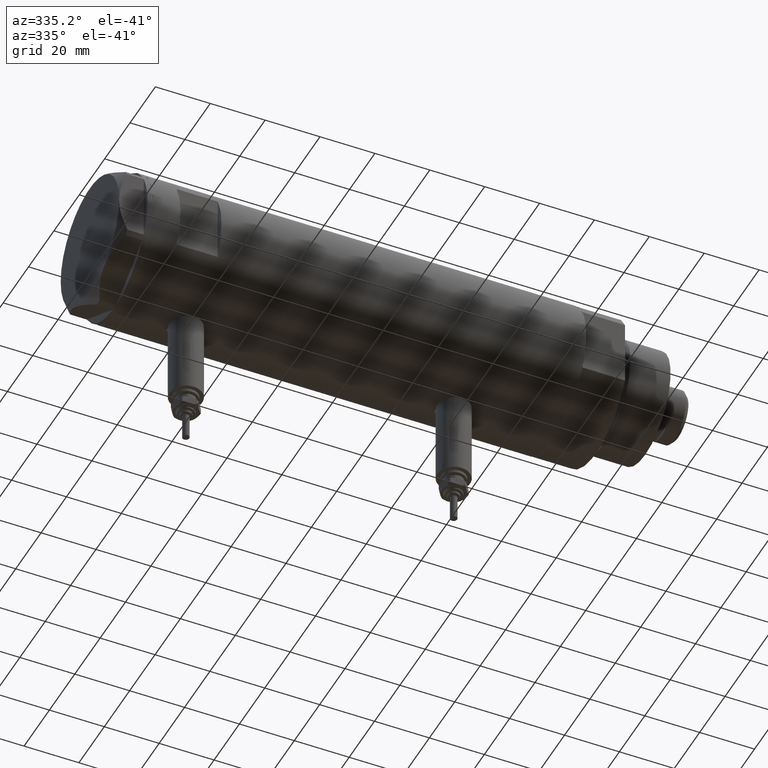
[diagram: clean part render]
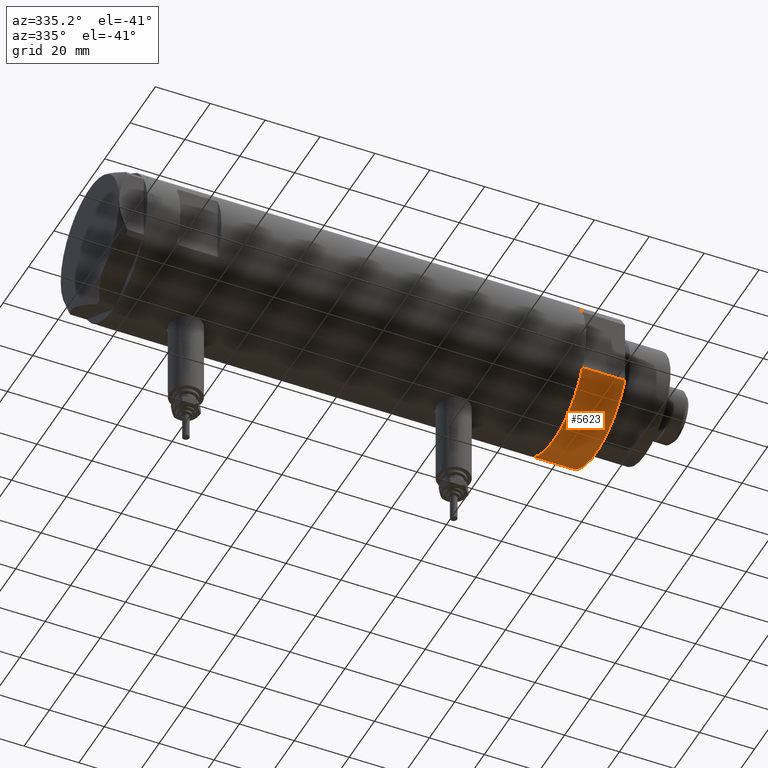
[diagram: same view with one face highlighted and labeled with its STEP entity id]
A machine part, auxiliary view. The second image highlights one B-rep face of the part: STEP entity #5623.
In plain terms, the highlighted cylindrical surface (partial cylindrical patch) has radius 26 mm, axis along (-1, -0, 0).
Its self-contained STEP definition (entity closure, byte-faithful):
#239 = VECTOR ( 'NONE', #577, 1000.000000000000000 ) ;
#300 = EDGE_CURVE ( 'NONE', #2695, #940, #2361, .T. ) ;
#489 = ORIENTED_EDGE ( 'NONE', *, *, #821, .F. ) ;
#577 = DIRECTION ( 'NONE',  ( -0.000000000000000000, -0.000000000000000000, 1.000000000000000000 ) ) ;
#691 = DIRECTION ( 'NONE',  ( 1.000000000000000000, 0.000000000000000000, 0.000000000000000000 ) ) ;
#821 = EDGE_CURVE ( 'NONE', #3895, #5755, #1532, .T. ) ;
#920 = ORIENTED_EDGE ( 'NONE', *, *, #6207, .T. ) ;
#940 = VERTEX_POINT ( 'NONE', #4628 ) ;
#971 = CARTESIAN_POINT ( 'NONE',  ( 12.12435565298215323, 23.00000000000000355, 0.000000000000000000 ) ) ;
#1024 = CARTESIAN_POINT ( 'NONE',  ( 12.12435565298215323, -22.99999999999999645, 0.000000000000000000 ) ) ;
#1099 = AXIS2_PLACEMENT_3D ( 'NONE', #4837, #5336, #5841 ) ;
#1210 = CARTESIAN_POINT ( 'NONE',  ( 12.12435565298214080, 23.00000000000000355, 0.000000000000000000 ) ) ;
#1301 = DIRECTION ( 'NONE',  ( 0.000000000000000000, 0.000000000000000000, 1.000000000000000000 ) ) ;
#1498 = AXIS2_PLACEMENT_3D ( 'NONE', #5079, #1301, #691 ) ;
#1532 = LINE ( 'NONE', #1024, #239 ) ;
#2361 = LINE ( 'NONE', #971, #3501 ) ;
#2432 = DIRECTION ( 'NONE',  ( -0.000000000000000000, -0.000000000000000000, -1.000000000000000000 ) ) ;
#2548 = EDGE_LOOP ( 'NONE', ( #5129, #489, #920, #4459 ) ) ;
#2695 = VERTEX_POINT ( 'NONE', #1210 ) ;
#2860 = DIRECTION ( 'NONE',  ( -0.000000000000000000, -0.000000000000000000, 1.000000000000000000 ) ) ;
#3329 = CYLINDRICAL_SURFACE ( 'NONE', #4069, 26.00000000000000355 ) ;
#3387 = DIRECTION ( 'NONE',  ( -1.000000000000000000, 0.000000000000000000, 0.000000000000000000 ) ) ;
#3501 = VECTOR ( 'NONE', #2860, 1000.000000000000000 ) ;
#3895 = VERTEX_POINT ( 'NONE', #4934 ) ;
#3974 = CIRCLE ( 'NONE', #1099, 26.00000000000000355 ) ;
#4069 = AXIS2_PLACEMENT_3D ( 'NONE', #4817, #2432, #3387 ) ;
#4284 = CIRCLE ( 'NONE', #1498, 26.00000000000000355 ) ;
#4455 = EDGE_CURVE ( 'NONE', #5755, #940, #4284, .T. ) ;
#4459 = ORIENTED_EDGE ( 'NONE', *, *, #300, .T. ) ;
#4628 = CARTESIAN_POINT ( 'NONE',  ( 12.12435565298214790, 23.00000000000000355, 15.50000000000000000 ) ) ;
#4817 = CARTESIAN_POINT ( 'NONE',  ( 0.000000000000000000, 0.000000000000000000, 15.50000000000000000 ) ) ;
#4837 = CARTESIAN_POINT ( 'NONE',  ( 0.000000000000000000, 0.000000000000000000, 0.000000000000000000 ) ) ;
#4901 = CARTESIAN_POINT ( 'NONE',  ( 12.12435565298215323, -22.99999999999999645, 15.50000000000000000 ) ) ;
#4934 = CARTESIAN_POINT ( 'NONE',  ( 12.12435565298215323, -22.99999999999999645, 0.000000000000000000 ) ) ;
#5079 = CARTESIAN_POINT ( 'NONE',  ( 0.000000000000000000, 0.000000000000000000, 15.50000000000000000 ) ) ;
#5129 = ORIENTED_EDGE ( 'NONE', *, *, #4455, .F. ) ;
#5336 = DIRECTION ( 'NONE',  ( 0.000000000000000000, 0.000000000000000000, 1.000000000000000000 ) ) ;
#5623 = ADVANCED_FACE ( 'NONE', ( #6245 ), #3329, .T. ) ;
#5755 = VERTEX_POINT ( 'NONE', #4901 ) ;
#5841 = DIRECTION ( 'NONE',  ( 1.000000000000000000, 0.000000000000000000, 0.000000000000000000 ) ) ;
#6207 = EDGE_CURVE ( 'NONE', #3895, #2695, #3974, .T. ) ;
#6245 = FACE_OUTER_BOUND ( 'NONE', #2548, .T. ) ;